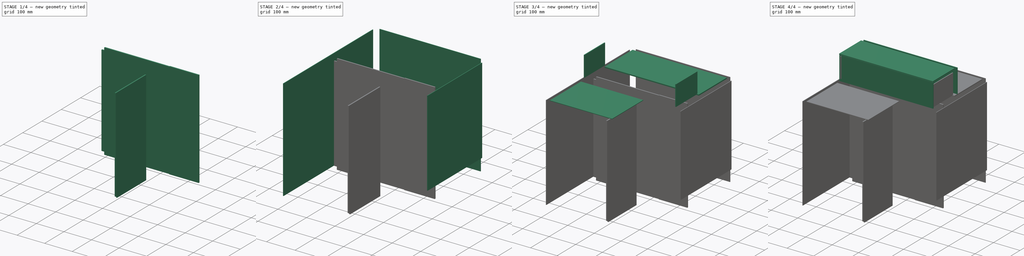
[diagram: build sequence overview — one tinted view per stage of 4, left to right]
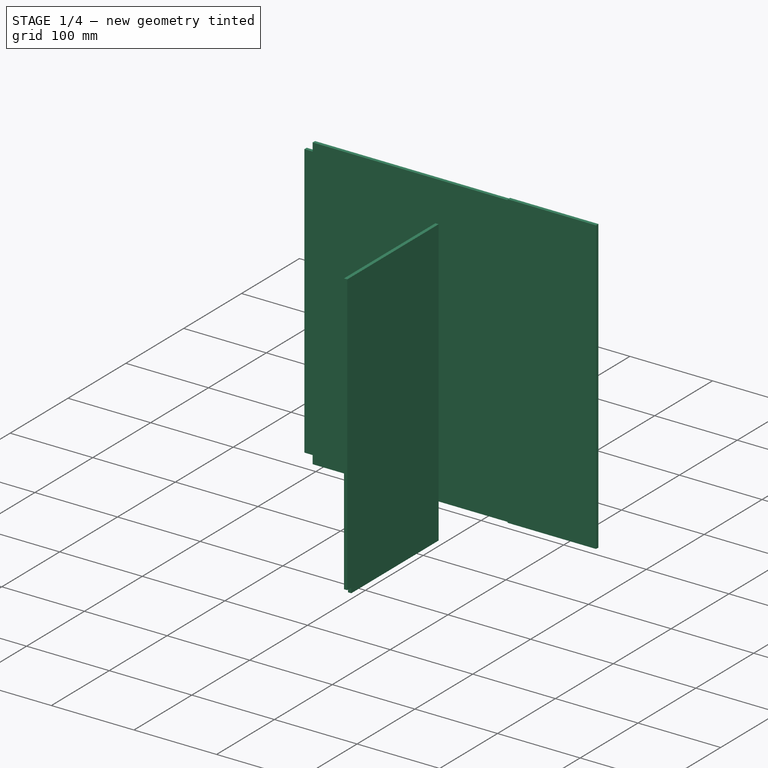
[diagram: stage 1 of 4 — iso view after this stage's code; geometry added in this stage tinted green]
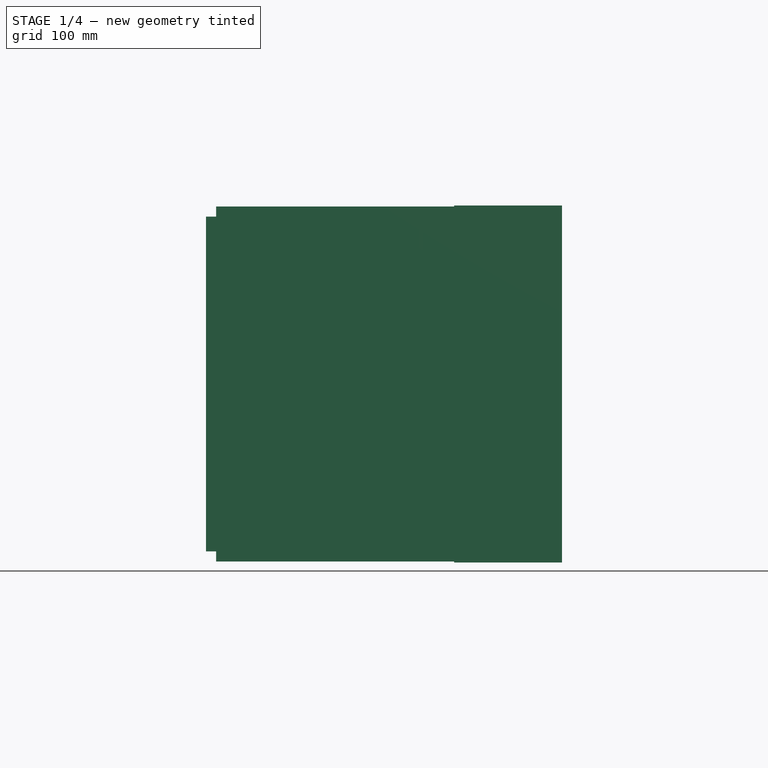
[diagram: stage 1 of 4 — front view after this stage's code; geometry added in this stage tinted green]
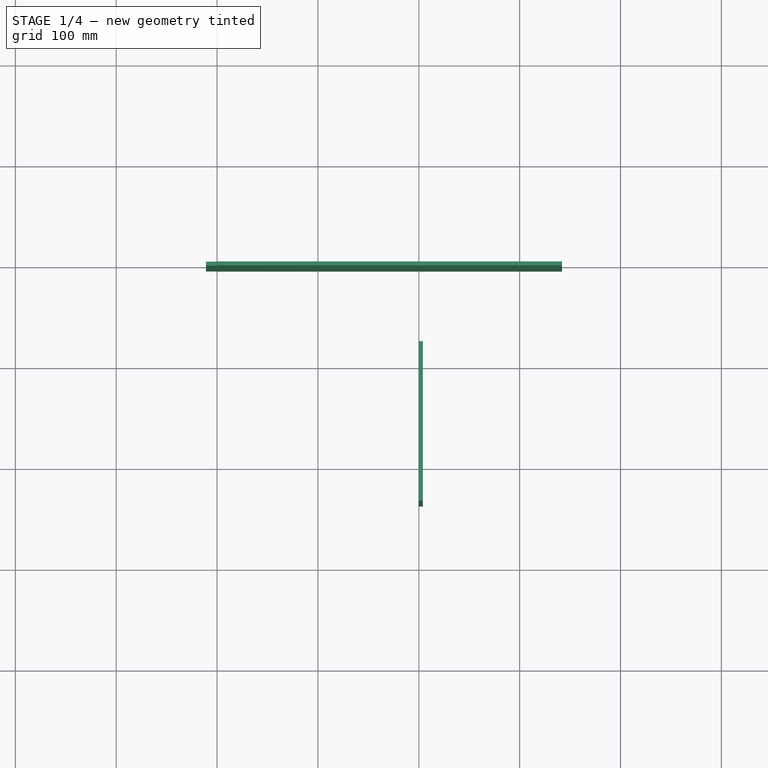
[diagram: stage 1 of 4 — top view after this stage's code; geometry added in this stage tinted green]
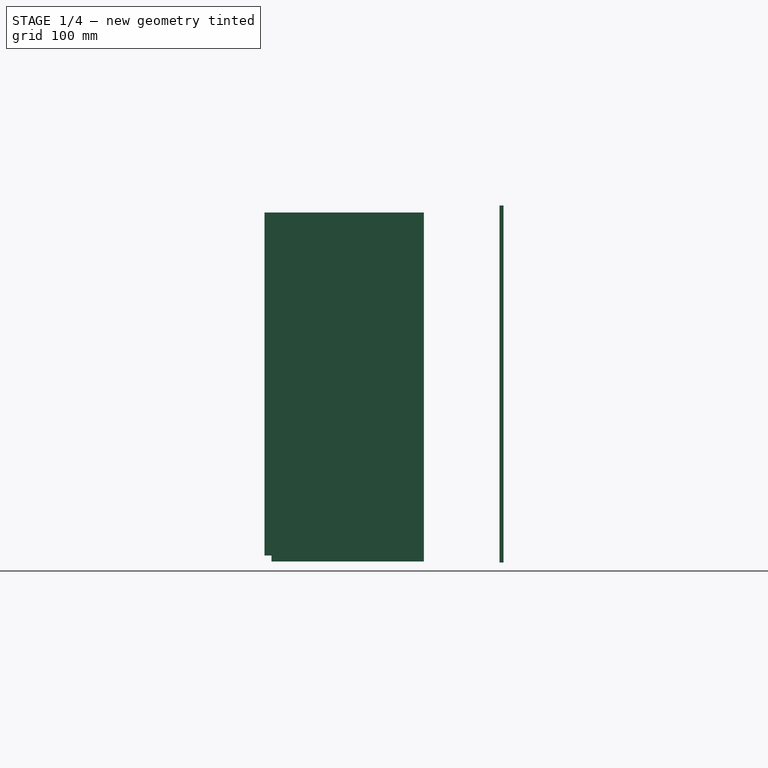
[diagram: stage 1 of 4 — right view after this stage's code; geometry added in this stage tinted green]
FCSTD DOCUMENT  (FreeCAD 0.18R)
Label: K-MINI-Enclosure-Panels
License: All rights reserved
LicenseURL: http://en.wikipedia.org/wiki/All_rights_reserved
objects: Part::Box×10, Sketcher::SketchObject×3, PartDesign::Pad×3, PartDesign::Body×3, App::Part×1, Drawing::FeatureViewPart×1, Drawing::FeaturePage×1
note: 22 computed .brp shape members not serialized (recipe doc carries the construction recipe); baked Part::Feature solids carry a one-line shape summary decoded from their .brp

FEATURE [Sketcher::SketchObject] Sketch
  MapMode = 5
  Placement = pos=(0,0,0) rot=(1,0,0;1.5708rad)
  Support = -> [XZ_Plane]
  sketch-geometry (8):
    g0: LineSegment StartX=35 StartY=317 StartZ=0 EndX=142 EndY=317 EndZ=0
    g1: LineSegment StartX=142 StartY=317 StartZ=0 EndX=142 EndY=-37 EndZ=0
    g2: LineSegment StartX=142 StartY=-37 StartZ=0 EndX=35 EndY=-37 EndZ=0
    g3: LineSegment StartX=35 StartY=-37 StartZ=0 EndX=35 EndY=-29 EndZ=0
    g4: LineSegment StartX=35 StartY=-29 StartZ=0 EndX=23 EndY=-29 EndZ=0
    g5: LineSegment StartX=23 StartY=-29 StartZ=0 EndX=23 EndY=309 EndZ=0
    g6: LineSegment StartX=23 StartY=309 StartZ=0 EndX=35 EndY=309 EndZ=0
    g7: LineSegment StartX=35 StartY=309 StartZ=0 EndX=35 EndY=317 EndZ=0
  constraints (24):
    c: Coincident(g0,g1)
    c: Coincident(g1,g2)
    c: Coincident(g2,g3)
    c: Coincident(g3,g4)
    c: Coincident(g4,g5)
    c: Coincident(g5,g6)
    c: Coincident(g6,g7)
    c: DistanceY(g1,g1) = 354
    c: Vertical(g1)
    c: DistanceX(g2,g2) = 107
    c: Horizontal(g2)
    c: Vertical(g3)
    c: Horizontal(g4)
    c: Vertical(g5)
    c: Horizontal(g0)
    c: Coincident(g0,g7)
    c: Vertical(g7)
    c: Horizontal(g6)
    c: Equal(g0,g2)
    c: DistanceY(g2,g-1) = 37
    c: DistanceX(g-1,g2) = 35
    c: DistanceX(g4,g4) = 12
    c: DistanceY(g3,g3) = 8
    c: DistanceY(g7,g7) = 8
FEATURE [PartDesign::Pad] Pad
  Length = 4
  Length2 = 100
  Placement = pos=(0,0,0) rot=(1,0,0;1.5708rad)
  Profile = -> Sketch
  Type = 0
FEATURE [PartDesign::Body] Body  label="FrontR"
  Group = -> [Sketch,Pad]
  Origin = -> Origin
  Placement = pos=(0,-75,0) rot=(0,0,1;0rad)
  Tip = -> Pad
FEATURE [Sketcher::SketchObject] Sketch001
  MapMode = 5
  Placement = pos=(0,0,0) rot=(0.57735,0.57735,0.57735;2.0944rad)
  Support = -> [YZ_Plane005]
  sketch-geometry (6):
    g0: LineSegment StartX=-79 StartY=-36 StartZ=0 EndX=-230 EndY=-36 EndZ=0
    g1: LineSegment StartX=-230 StartY=-36 StartZ=0 EndX=-230 EndY=-30 EndZ=0
    g2: LineSegment StartX=-230 StartY=-30 StartZ=0 EndX=-237 EndY=-30 EndZ=0
    g3: LineSegment StartX=-237 StartY=-30 StartZ=0 EndX=-237 EndY=310 EndZ=0
    g4: LineSegment StartX=-237 StartY=310 StartZ=0 EndX=-79 EndY=310 EndZ=0
    g5: LineSegment StartX=-79 StartY=310 StartZ=0 EndX=-79 EndY=-36 EndZ=0
  constraints (18):
    c: Coincident(g0,g1)
    c: Coincident(g1,g2)
    c: Coincident(g2,g3)
    c: Coincident(g3,g4)
    c: Coincident(g4,g5)
    c: Coincident(g0,g5)
    c: Horizontal(g0)
    c: Horizontal(g4)
    c: Horizontal(g2)
    c: Vertical(g3)
    c: Vertical(g5)
    c: Vertical(g1)
    c: DistanceY(g1,g1) = 6
    c: DistanceX(g2,g2) = 7
    c: DistanceY(g3,g3) = 340
    c: DistanceY(g1,g-1) = 30
    c: DistanceX(g0,g-1) = 79
    c: DistanceX(g2,g0) = 158
FEATURE [PartDesign::Pad] Pad001
  Length = 4
  Length2 = 100
  Placement = pos=(0,0,0) rot=(0.57735,0.57735,0.57735;2.0944rad)
  Profile = -> Sketch001
  Type = 0
FEATURE [PartDesign::Body] Body001  label="FrontM"
  Group = -> [Sketch001,Pad001]
  Origin = -> Origin005
  Placement = pos=(23,0,0) rot=(0,0,1;0rad)
  Tip = -> Pad001
FEATURE [Sketcher::SketchObject] Sketch002
  MapMode = 5
  Placement = pos=(0,0,0) rot=(1,0,0;1.5708rad)
  Support = -> [XZ_Plane006]
  sketch-geometry (12):
    g0: LineSegment StartX=35 StartY=316 StartZ=0 EndX=35 EndY=-36 EndZ=0
    g1: LineSegment StartX=35 StartY=-36 StartZ=0 EndX=-201 EndY=-36 EndZ=0
    g2: LineSegment StartX=-201 StartY=-36 StartZ=0 EndX=-201 EndY=-26 EndZ=0
    g3: LineSegment StartX=-211 StartY=-26 StartZ=0 EndX=-211 EndY=306 EndZ=0
    g4: LineSegment [constr] StartX=35 StartY=-30 StartZ=0 EndX=-205 EndY=-30 EndZ=0
    g5: LineSegment [constr] StartX=-205 StartY=-30 StartZ=0 EndX=-205 EndY=300 EndZ=0
    g6: LineSegment StartX=-211 StartY=-26 StartZ=0 EndX=-201 EndY=-26 EndZ=0
    g7: LineSegment [constr] StartX=-205 StartY=300 StartZ=0 EndX=35 EndY=300 EndZ=0
    g8: LineSegment [constr] StartX=35 StartY=300 StartZ=0 EndX=35 EndY=-30 EndZ=0
    g9: LineSegment StartX=-201 StartY=316 StartZ=0 EndX=35 EndY=316 EndZ=0
    g10: LineSegment StartX=-211 StartY=306 StartZ=0 EndX=-201 EndY=306 EndZ=0
    g11: LineSegment StartX=-201 StartY=306 StartZ=0 EndX=-201 EndY=316 EndZ=0
  constraints (36):
    c: Coincident(g0,g1)
    c: Coincident(g1,g2)
    c: Vertical(g3)
    c: Horizontal(g1)
    c: Vertical(g2)
    c: Vertical(g0)
    c: Horizontal(g4)
    c: Vertical(g5)
    c: DistanceX(g4,g4) = 240
    c: DistanceY(g5,g5) = 330
    c: Coincident(g5,g4)
    c: Coincident(g2,g6)
    c: Coincident(g3,g6)
    c: Horizontal(g6)
    c: DistanceY(g1,g4) = 6
    c: DistanceX(g6,g6) = 10
    c: DistanceY(g2,g2) = 10
    c: DistanceX(g4,g-1) = 205
    c: Coincident(g7,g8)
    c: Coincident(g8,g4)
    c: Vertical(g8)
    c: Horizontal(g7)
    c: Coincident(g5,g7)
    c: Coincident(g10,g11)
    c: Horizontal(g9)
    c: Coincident(g3,g10)
    c: Vertical(g11)
    c: Horizontal(g10)
    c: Coincident(g11,g9)
    c: Coincident(g9,g0)
    c: DistanceY(g11,g11) = 10
    c: DistanceX(g10,g10) = 10
    c: DistanceX(g3,g0) = 246
    c: DistanceX(g3,g4) = 6
    c: DistanceY(g0,g0) = 352
    c: DistanceY(g4,g-1) = 30
FEATURE [PartDesign::Pad] Pad002
  Length = 4
  Length2 = 100
  Placement = pos=(0,0,0) rot=(1,0,0;1.5708rad)
  Profile = -> Sketch002
  Type = 0
FEATURE [PartDesign::Body] Body002  label="FrontL"
  Group = -> [Sketch002,Pad002]
  Origin = -> Origin006
  Placement = pos=(0,-238,0) rot=(0,0,1;0rad)
  Tip = -> Pad002
FEATURE [App::Part] Part002  label="K-MINI-Enclosure-Panels"
  Group = -> [Box016,Box015,Box013,Box012,Box014,Box017,Box018,Box019,Box020,Box021,Body,Body001,Body002]
  Origin = -> Origin004
FEATURE [Drawing::FeatureViewPart] View
  Direction = (0,-1,0)
  HiddenWidth = 0.15
  LineWidth = 0.35
  Rotation = 0
  Scale = 0.25
  ShowHiddenLines = false
  ShowSmoothLines = false
  Source = -> Body002
  Tolerance = 0.05
  ViewResult = <g id="View"\n   transform="rotate(0,100,100) translate(100,100) scale(0.25,0.25)"\n  >\n<g   fill="none"\n   stroke="rgb(0, 0, 0)"\n   stroke-linecap="butt"\n   stroke-linejoin="miter"\n   stroke-width="1.400000"\n   transform="scale(1,-1)"\n  >\n<path id= "1" d=" M -316 35 L 36 35 " />\n<path id= "2" d=" M 36 35 L 36 -201 " />\n<path id= "3" d=" M 36 -201 L 26 -201 " />\n<path id= "4" d=" M 26 -211 L 26 -201 " />\n<path id= "5" d=" M 26 -211 L -306 -211 " />\n<path id= "6" d=" M -306 -211 L -306 -201 " />\n<path id= "7" d=" M -306 -201 L -316 -201 " />\n<path id= "8" d=" M -316 -201 L -316 35 " />\n</g>\n</g>
  Visible = false
  X = 100
  Y = 100
FEATURE [Drawing::FeaturePage] Page
  Group = -> [View]
  Template = <path>
note: 1 file-system path scrubbed to <path> (originals preserved in the JSON sidecar)
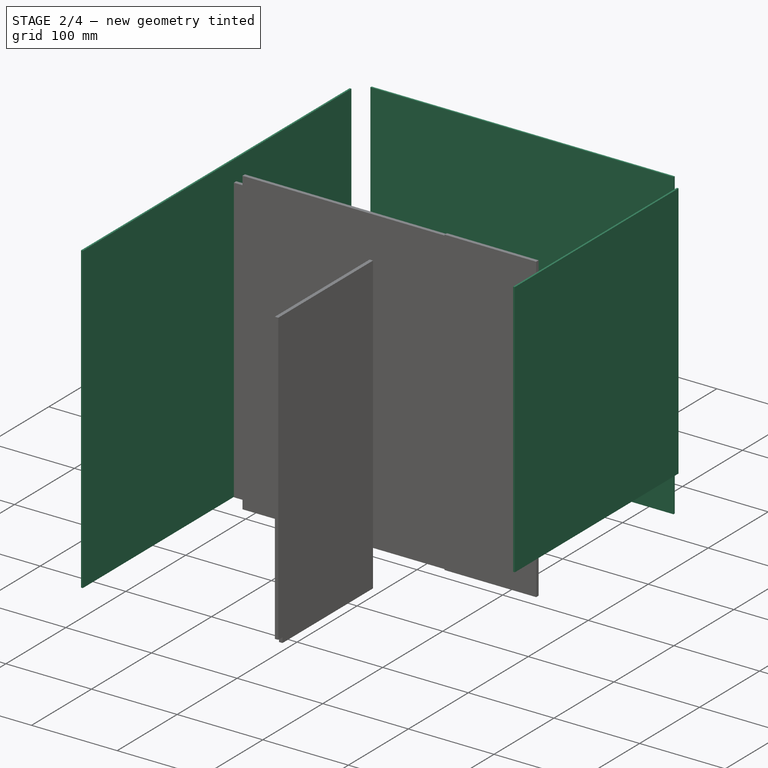
[diagram: stage 2 of 4 — iso view after this stage's code; geometry added in this stage tinted green]
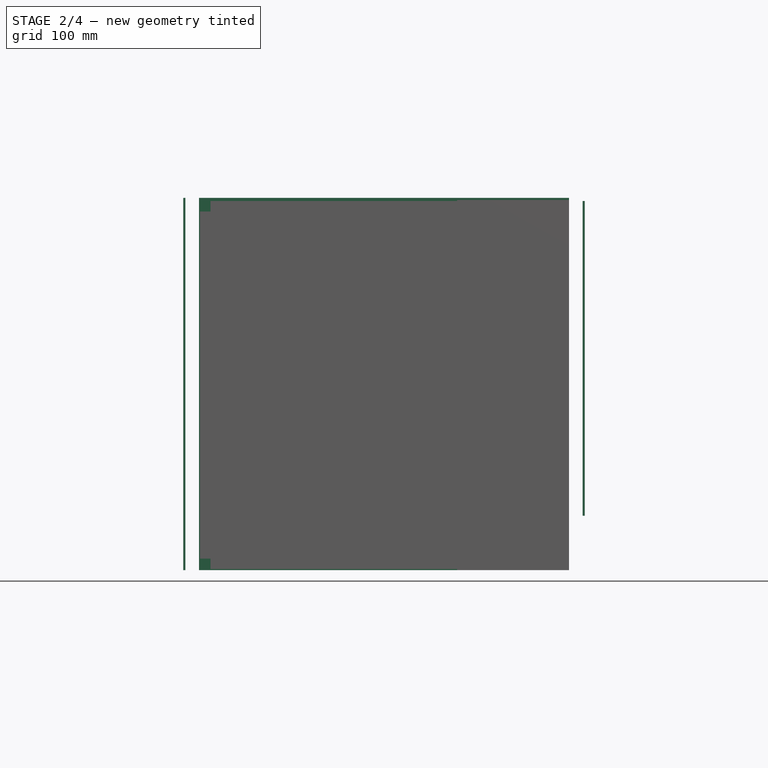
[diagram: stage 2 of 4 — front view after this stage's code; geometry added in this stage tinted green]
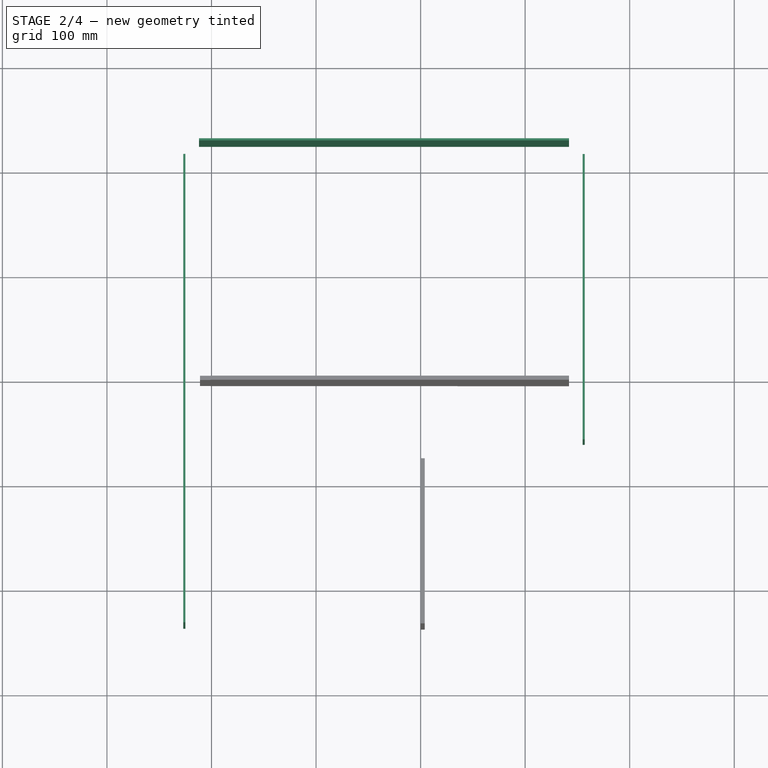
[diagram: stage 2 of 4 — top view after this stage's code; geometry added in this stage tinted green]
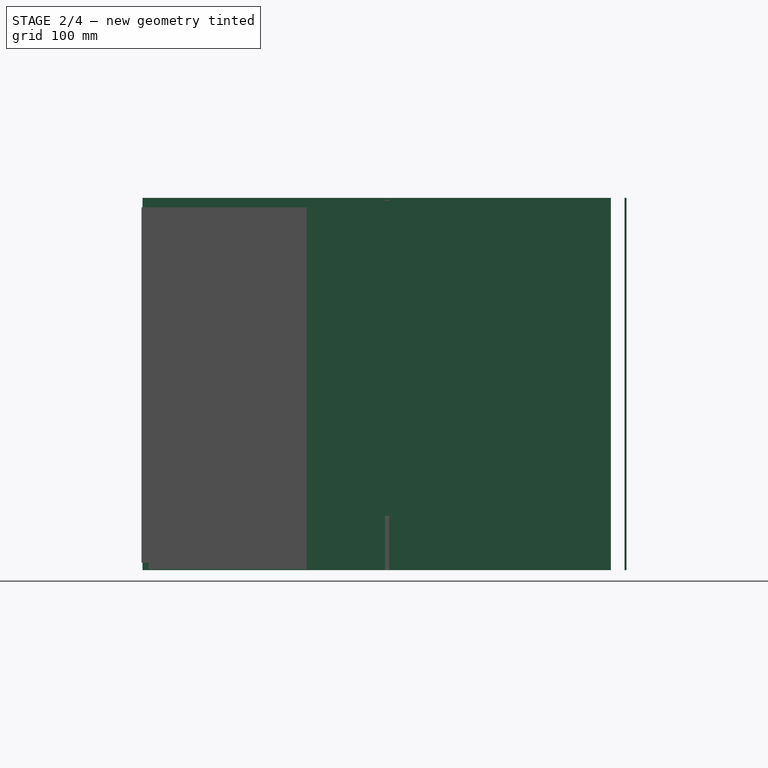
[diagram: stage 2 of 4 — right view after this stage's code; geometry added in this stage tinted green]
FEATURE [Part::Box] Box019  label="AcrylLeft"
  AttacherType = Attacher::AttachEngine3D
  Height = 2
  Length = 356
  Placement = pos=(-225,-236,-37) rot=(0,-1,0;1.5708rad)
  Width = 448
FEATURE [Part::Box] Box020  label="AcrylRight"
  AttacherType = Attacher::AttachEngine3D
  Height = 2
  Length = 301
  Placement = pos=(155,212,15) rot=(0.707107,0,0.707107;3.14159rad)
  Width = 273
FEATURE [Part::Box] Box021  label="AcrylRear"
  AttacherType = Attacher::AttachEngine3D
  Height = 2
  Length = 356
  Placement = pos=(-212,225,-37) rot=(0.57735,0.57735,0.57735;4.18879rad)
  Width = 354
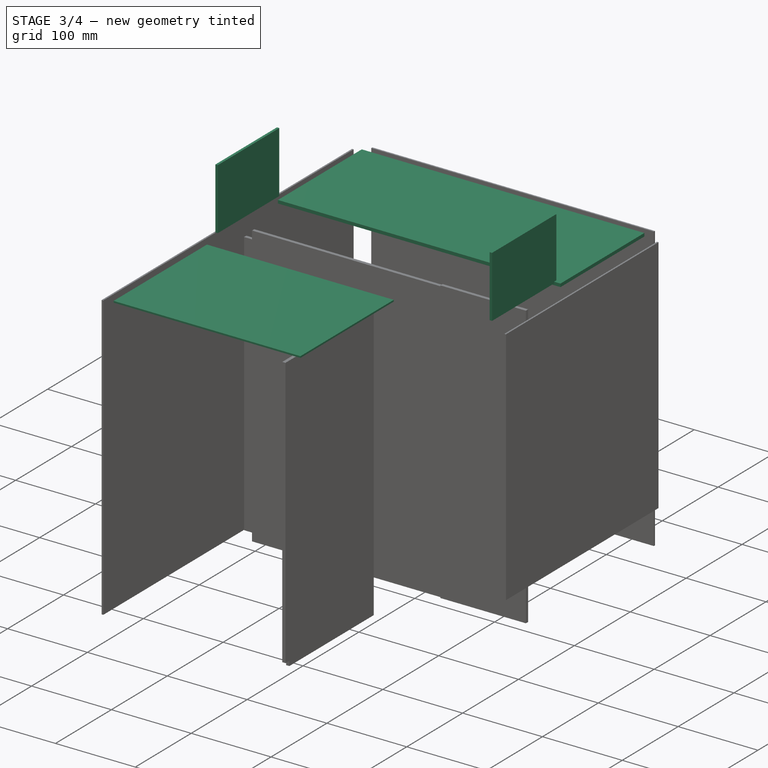
[diagram: stage 3 of 4 — iso view after this stage's code; geometry added in this stage tinted green]
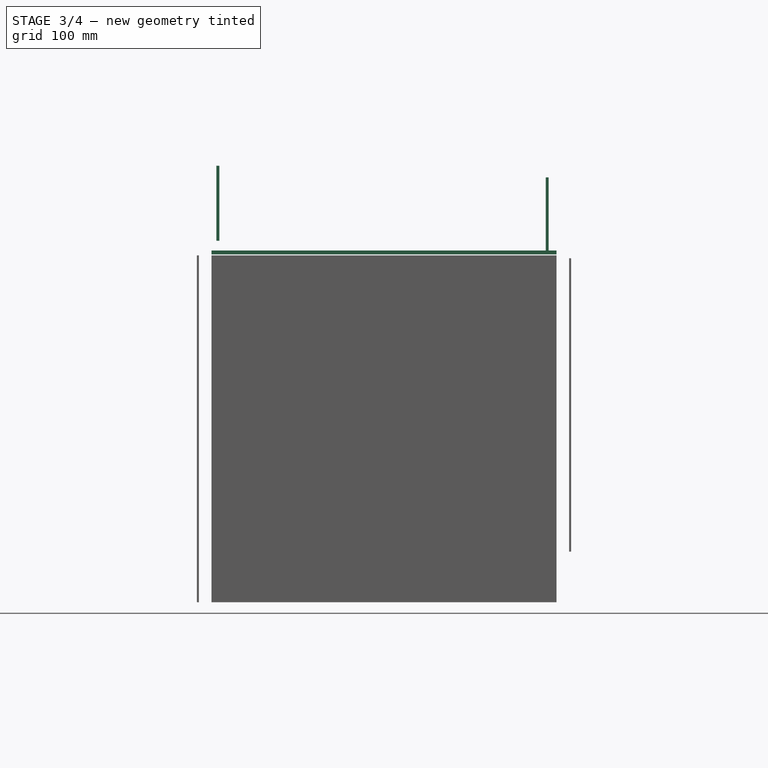
[diagram: stage 3 of 4 — front view after this stage's code; geometry added in this stage tinted green]
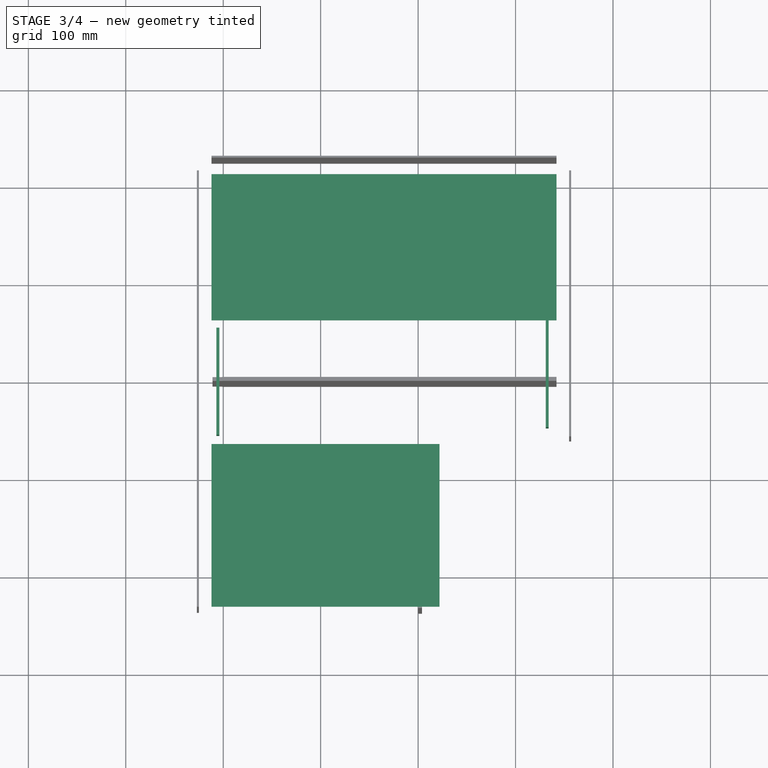
[diagram: stage 3 of 4 — top view after this stage's code; geometry added in this stage tinted green]
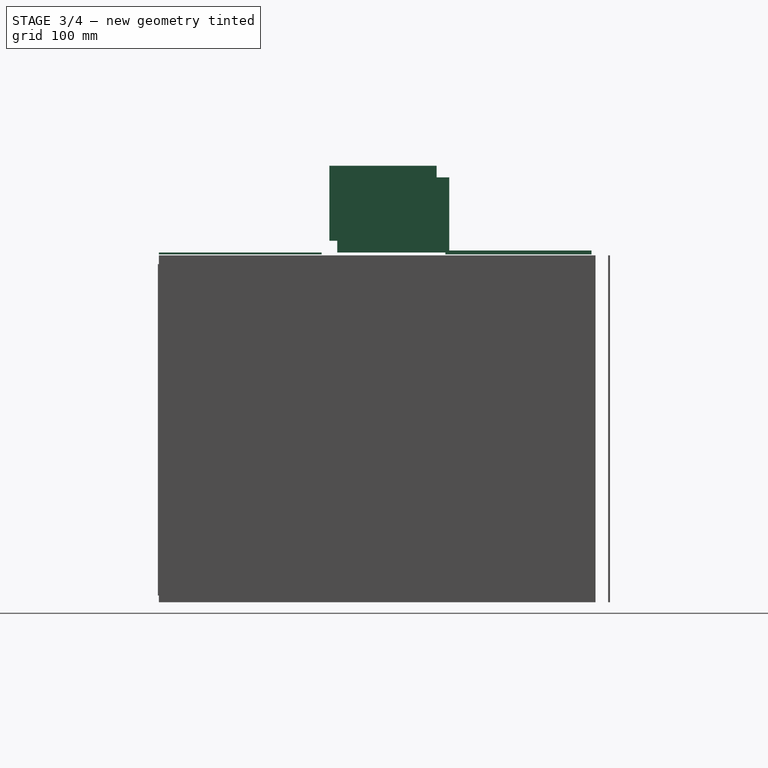
[diagram: stage 3 of 4 — right view after this stage's code; geometry added in this stage tinted green]
FEATURE [Part::Box] Box015  label="AcrylTopFront"
  AttacherType = Attacher::AttachEngine3D
  Height = 2
  Length = 234
  Placement = pos=(-212,-236,320) rot=(0,0,1;0rad)
  Width = 167
FEATURE [Part::Box] Box016  label="AcrylTopRear"
  AttacherType = Attacher::AttachEngine3D
  Height = 4
  Length = 354
  Placement = pos=(-212,58,320) rot=(0,0,1;0rad)
  Width = 150
FEATURE [Part::Box] Box017  label="AcrylHandleL"
  AttacherType = Attacher::AttachEngine3D
  Height = 3
  Length = 115
  Placement = pos=(134,62,322) rot=(0.57735,-0.57735,-0.57735;2.0944rad)
  Width = 77
FEATURE [Part::Box] Box018  label="AcrylHandleR"
  AttacherType = Attacher::AttachEngine3D
  Height = 3
  Length = 110
  Placement = pos=(-207,-61,334) rot=(0.57735,0.57735,0.57735;2.0944rad)
  Width = 77
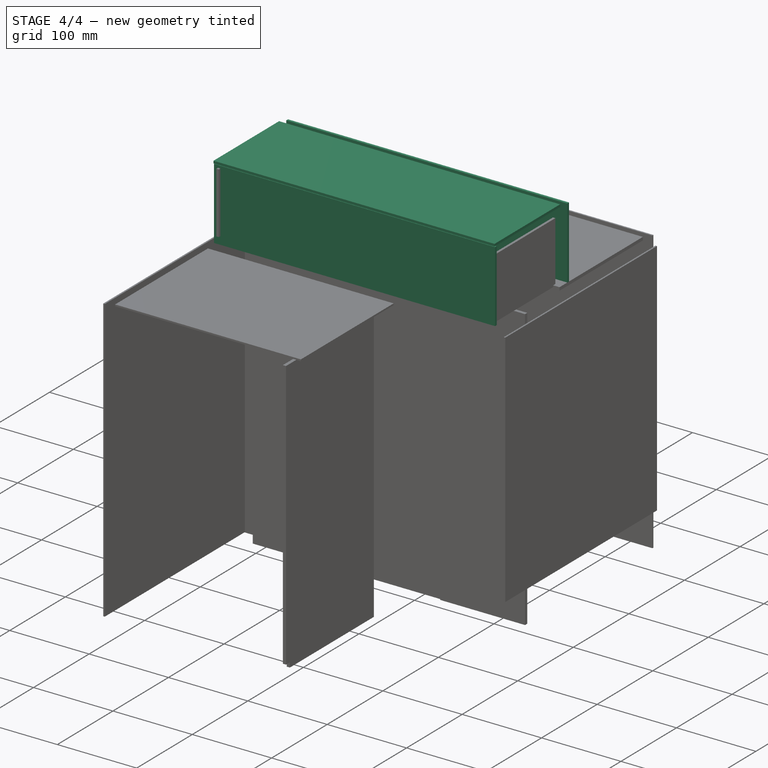
[diagram: stage 4 of 4 — iso view after this stage's code; geometry added in this stage tinted green]
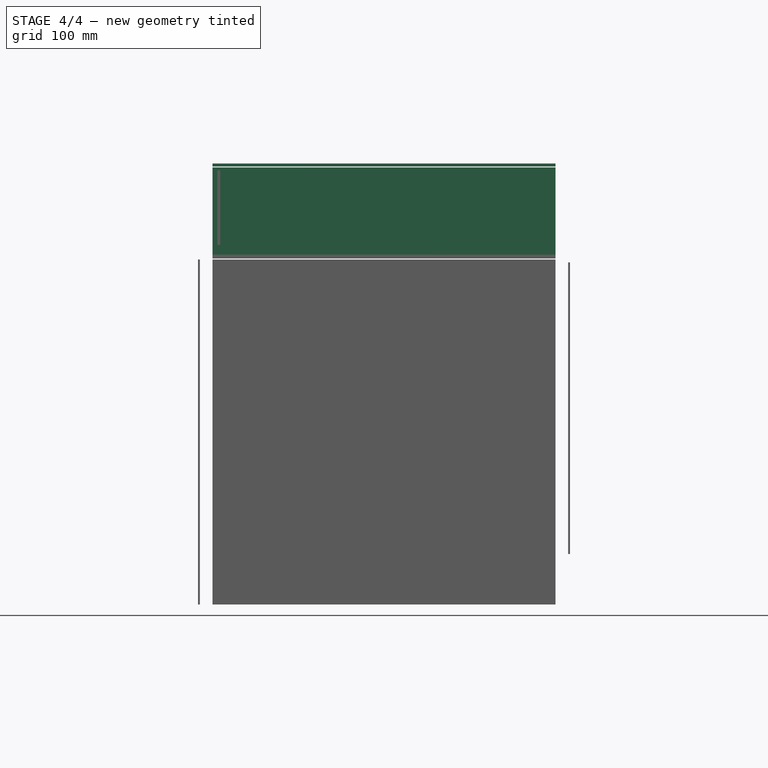
[diagram: stage 4 of 4 — front view after this stage's code; geometry added in this stage tinted green]
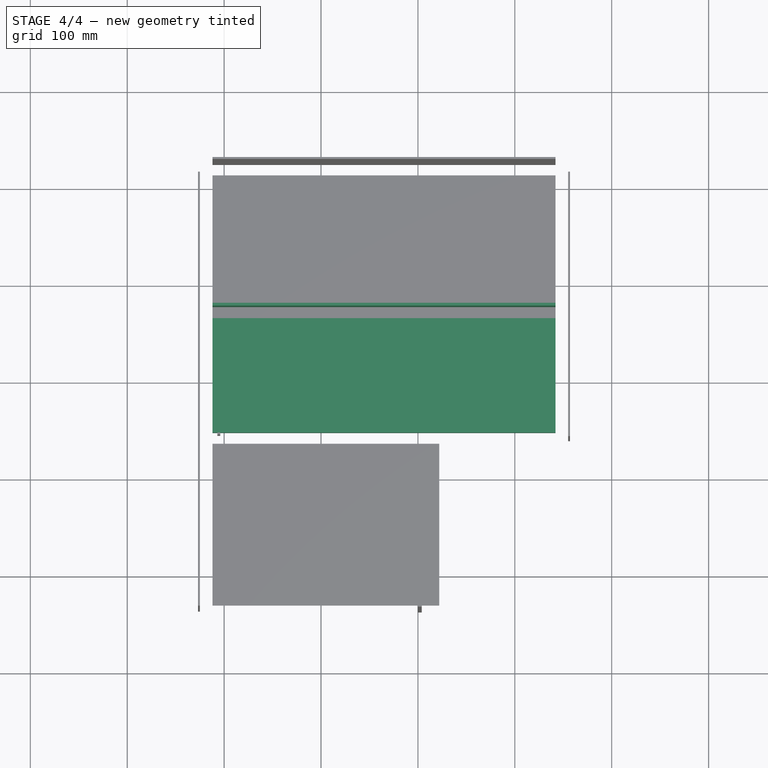
[diagram: stage 4 of 4 — top view after this stage's code; geometry added in this stage tinted green]
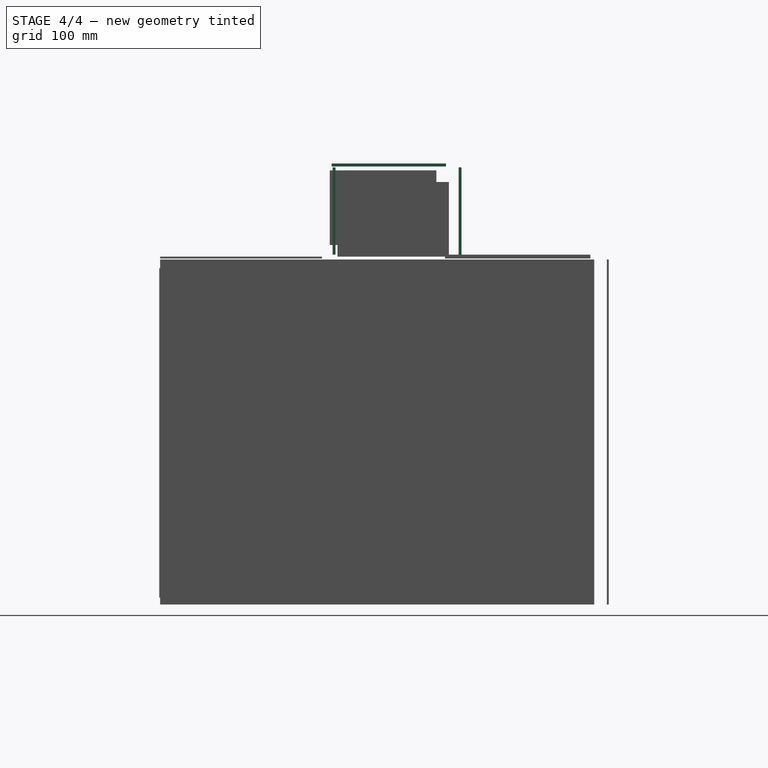
[diagram: stage 4 of 4 — right view after this stage's code; geometry added in this stage tinted green]
FEATURE [Part::Box] Box012  label="AcrylHandleTop"
  AttacherType = Attacher::AttachEngine3D
  Height = 3
  Length = 354
  Placement = pos=(-212,-59,415) rot=(0,0,1;0rad)
  Width = 118
FEATURE [Part::Box] Box013  label="AcrylHandleTopFront"
  AttacherType = Attacher::AttachEngine3D
  Height = 3
  Length = 354
  Placement = pos=(-212,-55,324) rot=(1,0,0;1.5708rad)
  Width = 90
FEATURE [Part::Box] Box014  label="AcrylHandleTopRear"
  AttacherType = Attacher::AttachEngine3D
  Height = 3
  Length = 354
  Placement = pos=(-212,75,324) rot=(1,0,0;1.5708rad)
  Width = 90
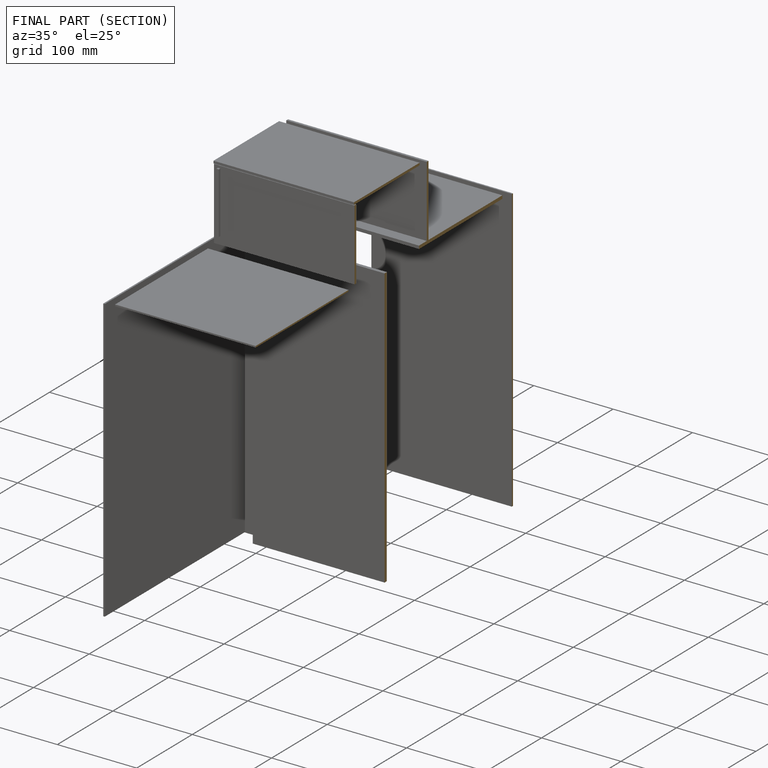
[diagram: finished part — half-section view (interior)]
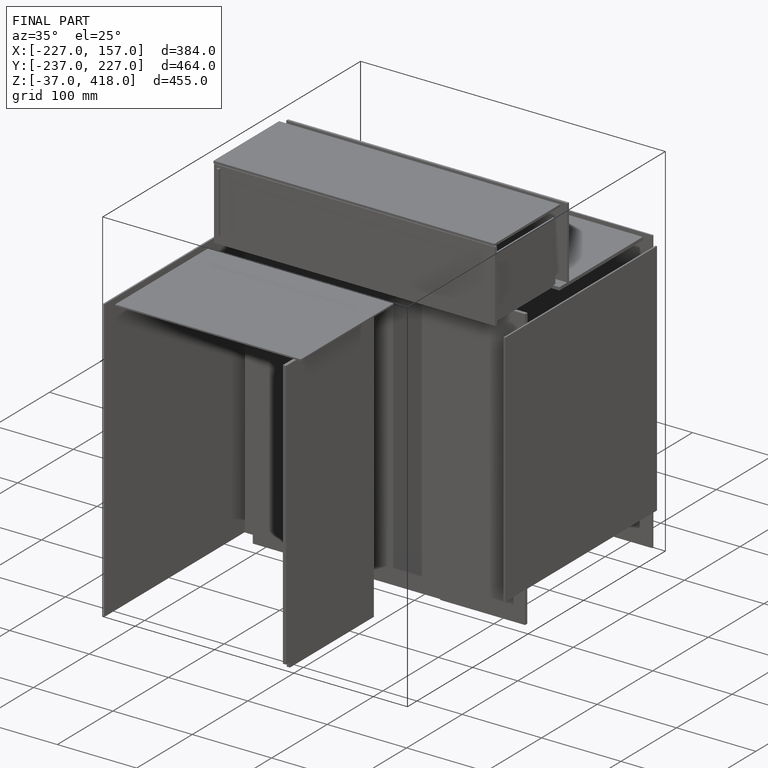
[diagram: finished part — iso view with bounding-box wireframe]
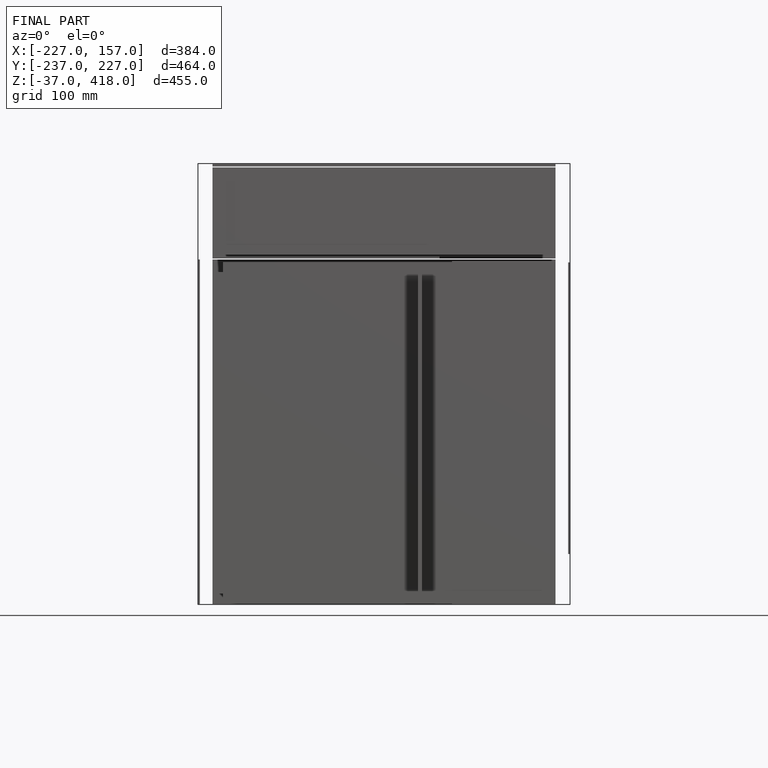
[diagram: finished part — front view with bounding-box wireframe]
